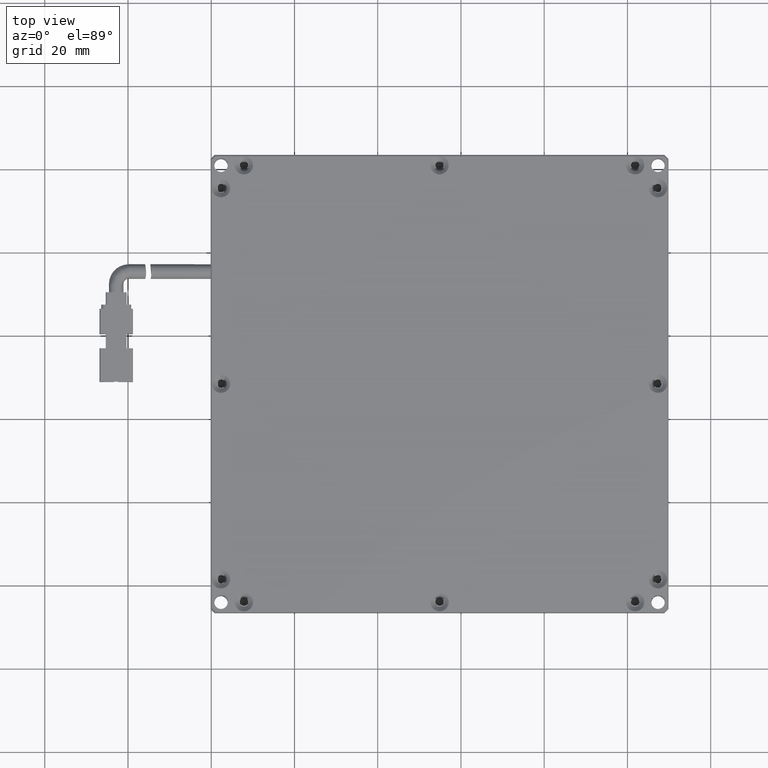
[diagram: clean part render]
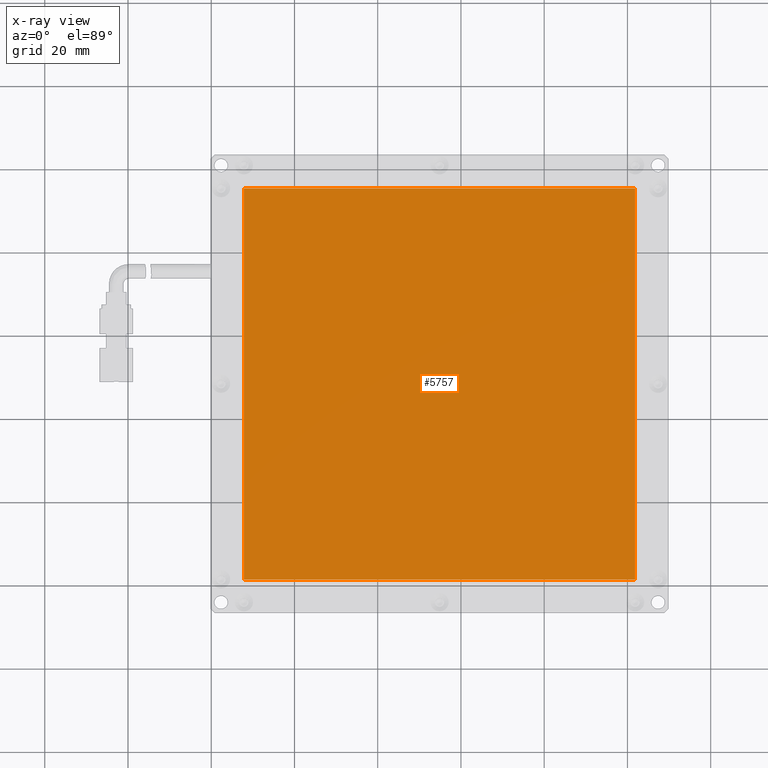
[diagram: x-ray — body ghosted, one internal face saturated and labeled with its STEP entity id]
A machine part, top view, then the same camera in x-ray: the body is ghosted and one INTERNAL B-rep face — a face not visible from any outside direction — is saturated and labeled: STEP entity #5757.
In plain terms, the highlighted planar face has unit normal (0, 0, -1).
Its self-contained STEP definition (entity closure, byte-faithful):
#629 = VERTEX_POINT ( 'NONE', #8653 ) ;
#1018 = VECTOR ( 'NONE', #4296, 1000.000000000000000 ) ;
#2016 = CARTESIAN_POINT ( 'NONE',  ( -52.14509354716000200, 8.400152730050004700, -2.500000000024000400 ) ) ;
#2434 = VECTOR ( 'NONE', #10213, 1000.000000000000000 ) ;
#3577 = CARTESIAN_POINT ( 'NONE',  ( 43.73490645284000800, -40.47984726994997800, -2.500000000023999900 ) ) ;
#3689 = DIRECTION ( 'NONE',  ( -1.000000000000000000, -0.0000000000000000000, -0.0000000000000000000 ) ) ;
#3719 = FACE_OUTER_BOUND ( 'NONE', #17681, .T. ) ;
#4296 = DIRECTION ( 'NONE',  ( -1.000000000000000000, 0.0000000000000000000, 0.0000000000000000000 ) ) ;
#4980 = DIRECTION ( 'NONE',  ( -1.000000000000000000, 0.0000000000000000000, 0.0000000000000000000 ) ) ;
#5105 = CARTESIAN_POINT ( 'NONE',  ( 41.85490645284000500, 8.400152730050008300, -2.500000000024000400 ) ) ;
#5336 = VECTOR ( 'NONE', #16178, 1000.000000000000000 ) ;
#5356 = ORIENTED_EDGE ( 'NONE', *, *, #10762, .F. ) ;
#5757 = ADVANCED_FACE ( 'NONE', ( #3719 ), #14549, .F. ) ;
#6813 = LINE ( 'NONE', #11932, #8114 ) ;
#7247 = VERTEX_POINT ( 'NONE', #13554 ) ;
#7885 = AXIS2_PLACEMENT_3D ( 'NONE', #3577, #13204, #4980 ) ;
#7987 = VERTEX_POINT ( 'NONE', #15302 ) ;
#8114 = VECTOR ( 'NONE', #3689, 1000.000000000000000 ) ;
#8265 = LINE ( 'NONE', #13819, #1018 ) ;
#8653 = CARTESIAN_POINT ( 'NONE',  ( -52.14509354716000900, 55.40015273004998900, -2.500000000024000400 ) ) ;
#10087 = EDGE_CURVE ( 'NONE', #13540, #7987, #12648, .T. ) ;
#10213 = DIRECTION ( 'NONE',  ( -0.0000000000000000000, -1.000000000000000000, -0.0000000000000000000 ) ) ;
#10554 = CARTESIAN_POINT ( 'NONE',  ( 41.85490645284000500, 55.40015273004998900, -2.500000000024000400 ) ) ;
#10762 = EDGE_CURVE ( 'NONE', #7987, #7247, #8265, .T. ) ;
#11932 = CARTESIAN_POINT ( 'NONE',  ( -5.145093547160001000, 55.40015273004998200, -2.500000000024000400 ) ) ;
#12283 = ORIENTED_EDGE ( 'NONE', *, *, #12965, .T. ) ;
#12452 = ORIENTED_EDGE ( 'NONE', *, *, #14653, .T. ) ;
#12648 = LINE ( 'NONE', #5105, #5336 ) ;
#12965 = EDGE_CURVE ( 'NONE', #13540, #629, #6813, .T. ) ;
#12993 = LINE ( 'NONE', #2016, #2434 ) ;
#13204 = DIRECTION ( 'NONE',  ( 0.0000000000000000000, 0.0000000000000000000, -1.000000000000000000 ) ) ;
#13540 = VERTEX_POINT ( 'NONE', #10554 ) ;
#13554 = CARTESIAN_POINT ( 'NONE',  ( -52.14509354716000200, -38.59984726994999000, -2.500000000024000400 ) ) ;
#13819 = CARTESIAN_POINT ( 'NONE',  ( -5.145093547160001000, -38.59984726994997600, -2.500000000024000400 ) ) ;
#14549 = PLANE ( 'NONE',  #7885 ) ;
#14653 = EDGE_CURVE ( 'NONE', #629, #7247, #12993, .T. ) ;
#15302 = CARTESIAN_POINT ( 'NONE',  ( 41.85490645284000500, -38.59984726994998300, -2.500000000024000400 ) ) ;
#15586 = ORIENTED_EDGE ( 'NONE', *, *, #10087, .F. ) ;
#16178 = DIRECTION ( 'NONE',  ( -0.0000000000000000000, -1.000000000000000000, -0.0000000000000000000 ) ) ;
#17681 = EDGE_LOOP ( 'NONE', ( #15586, #12283, #12452, #5356 ) ) ;